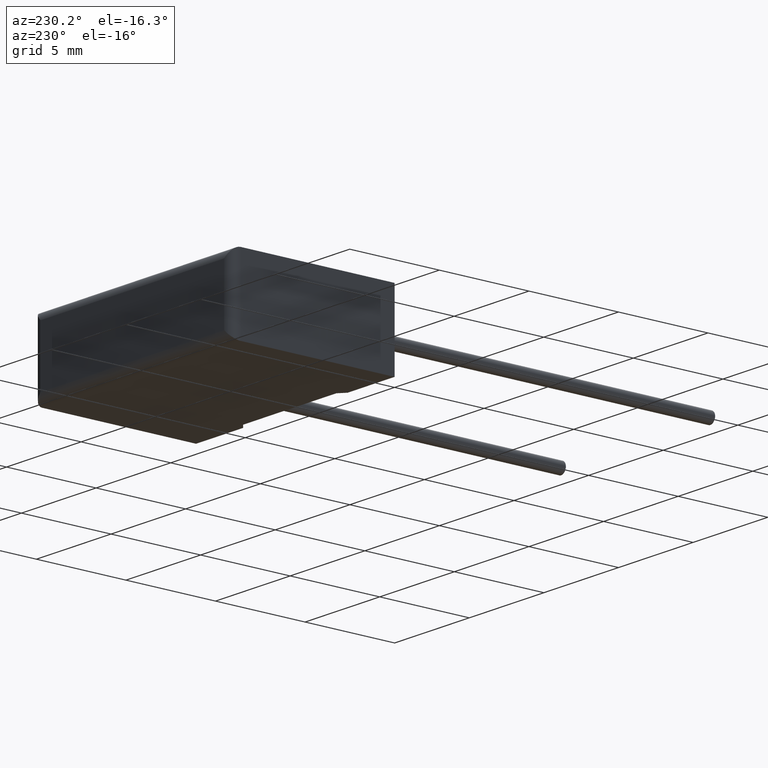
[diagram: clean part render]
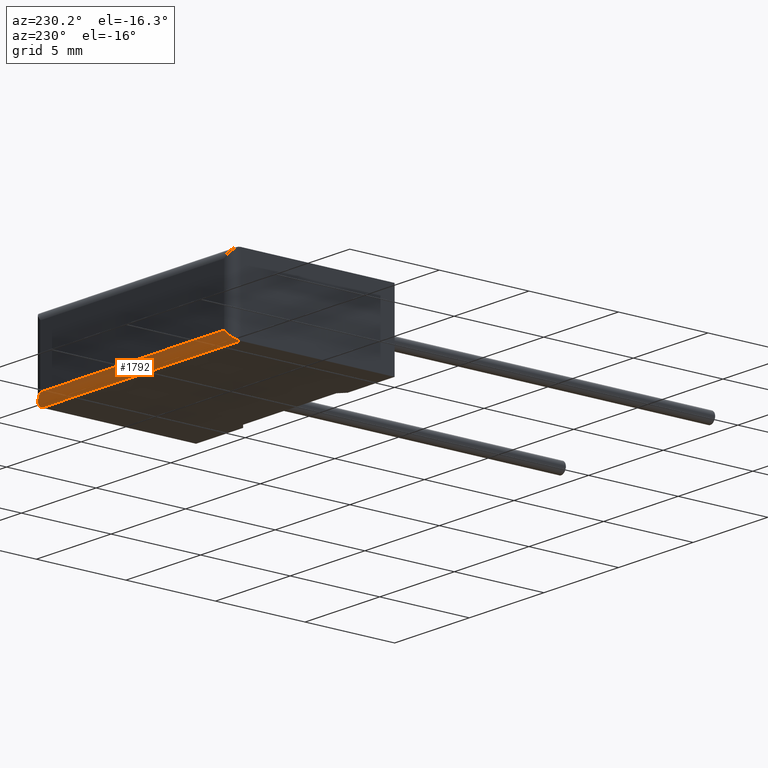
[diagram: same view with one face highlighted and labeled with its STEP entity id]
A machine part, auxiliary view. The second image highlights one B-rep face of the part: STEP entity #1792.
In plain terms, the highlighted cylindrical surface (edge-blend (fillet) strip) has radius 0.5 mm, axis along (1, 0, 0).
Its self-contained STEP definition (entity closure, byte-faithful):
#118 = ORIENTED_EDGE ( 'NONE', *, *, #1376, .F. ) ;
#202 = ORIENTED_EDGE ( 'NONE', *, *, #484, .F. ) ;
#211 = VECTOR ( 'NONE', #1558, 1000.000000000000000 ) ;
#477 = ORIENTED_EDGE ( 'NONE', *, *, #2790, .T. ) ;
#484 = EDGE_CURVE ( 'NONE', #517, #2030, #765, .T. ) ;
#517 = VERTEX_POINT ( 'NONE', #1700 ) ;
#636 = CARTESIAN_POINT ( 'NONE',  ( 0.000000000000000000, 8.599999999999999645, 0.5000000000000000000 ) ) ;
#765 = LINE ( 'NONE', #1011, #1676 ) ;
#786 = CARTESIAN_POINT ( 'NONE',  ( 13.30000000000000071, 8.599999999999999645, 0.000000000000000000 ) ) ;
#859 = DIRECTION ( 'NONE',  ( 0.000000000000000000, 0.000000000000000000, -1.000000000000000000 ) ) ;
#867 = LINE ( 'NONE', #1789, #211 ) ;
#869 = CARTESIAN_POINT ( 'NONE',  ( 0.000000000000000000, 8.599999999999999645, 0.000000000000000000 ) ) ;
#1011 = CARTESIAN_POINT ( 'NONE',  ( 0.000000000000000000, 9.099999999999999645, 0.5000000000000000000 ) ) ;
#1075 = CARTESIAN_POINT ( 'NONE',  ( 1.442892915397364602E-16, 8.892893218813449963, 1.442892915397364602E-16 ) ) ;
#1109 = CYLINDRICAL_SURFACE ( 'NONE', #2818, 0.5000000000000000000 ) ;
#1225 = CARTESIAN_POINT ( 'NONE',  ( 13.30000000000000071, 8.892893218813451739, 1.084202172485504434E-16 ) ) ;
#1271 = EDGE_LOOP ( 'NONE', ( #477, #118, #1553, #202 ) ) ;
#1376 = EDGE_CURVE ( 'NONE', #1963, #2590, #867, .T. ) ;
#1404 =( BOUNDED_CURVE ( )  B_SPLINE_CURVE ( 3, ( #2872, #2644, #1225, #786 ),
 .UNSPECIFIED., .F., .T. ) 
 B_SPLINE_CURVE_WITH_KNOTS ( ( 4, 4 ),
 ( 4.712388980384689674, 6.283185307179586232 ),
 .UNSPECIFIED. ) 
 CURVE ( )  GEOMETRIC_REPRESENTATION_ITEM ( )  RATIONAL_B_SPLINE_CURVE ( ( 1.000000000000000000, 0.8047378541243649375, 0.8047378541243649375, 1.000000000000000000 ) ) 
 REPRESENTATION_ITEM ( '' )  );
#1470 = CARTESIAN_POINT ( 'NONE',  ( 0.000000000000000000, 8.599999999999999645, 0.000000000000000000 ) ) ;
#1553 = ORIENTED_EDGE ( 'NONE', *, *, #2977, .F. ) ;
#1558 = DIRECTION ( 'NONE',  ( 1.000000000000000000, -0.000000000000000000, -0.000000000000000000 ) ) ;
#1676 = VECTOR ( 'NONE', #2661, 1000.000000000000000 ) ;
#1700 = CARTESIAN_POINT ( 'NONE',  ( 12.80000000000000071, 9.099999999999999645, 0.5000000000000000000 ) ) ;
#1789 = CARTESIAN_POINT ( 'NONE',  ( 13.30000000000000071, 8.599999999999999645, 0.000000000000000000 ) ) ;
#1792 = ADVANCED_FACE ( 'NONE', ( #2380 ), #1109, .T. ) ;
#1963 = VERTEX_POINT ( 'NONE', #1470 ) ;
#2030 = VERTEX_POINT ( 'NONE', #2885 ) ;
#2264 = CARTESIAN_POINT ( 'NONE',  ( 13.30000000000000071, 8.599999999999999645, 0.000000000000000000 ) ) ;
#2284 = DIRECTION ( 'NONE',  ( 1.000000000000000000, 0.000000000000000000, 0.000000000000000000 ) ) ;
#2380 = FACE_OUTER_BOUND ( 'NONE', #1271, .T. ) ;
#2590 = VERTEX_POINT ( 'NONE', #2264 ) ;
#2644 = CARTESIAN_POINT ( 'NONE',  ( 13.09289321881345280, 9.099999999999999645, 0.2071067811865477115 ) ) ;
#2661 = DIRECTION ( 'NONE',  ( -1.000000000000000000, 0.000000000000000000, 0.000000000000000000 ) ) ;
#2687 =( BOUNDED_CURVE ( )  B_SPLINE_CURVE ( 3, ( #2994, #2981, #1075, #869 ),
 .UNSPECIFIED., .F., .T. ) 
 B_SPLINE_CURVE_WITH_KNOTS ( ( 4, 4 ),
 ( 1.570796326794896780, 3.141592653589793116 ),
 .UNSPECIFIED. ) 
 CURVE ( )  GEOMETRIC_REPRESENTATION_ITEM ( )  RATIONAL_B_SPLINE_CURVE ( ( 1.000000000000000000, 0.8047378541243650485, 0.8047378541243650485, 1.000000000000000000 ) ) 
 REPRESENTATION_ITEM ( '' )  );
#2790 = EDGE_CURVE ( 'NONE', #517, #2590, #1404, .T. ) ;
#2818 = AXIS2_PLACEMENT_3D ( 'NONE', #636, #2284, #859 ) ;
#2872 = CARTESIAN_POINT ( 'NONE',  ( 12.80000000000000071, 9.099999999999999645, 0.5000000000000000000 ) ) ;
#2885 = CARTESIAN_POINT ( 'NONE',  ( 0.5000000000000000000, 9.099999999999999645, 0.5000000000000000000 ) ) ;
#2977 = EDGE_CURVE ( 'NONE', #2030, #1963, #2687, .T. ) ;
#2981 = CARTESIAN_POINT ( 'NONE',  ( 0.2071067811865475172, 9.099999999999999645, 0.2071067811865475172 ) ) ;
#2994 = CARTESIAN_POINT ( 'NONE',  ( 0.5000000000000000000, 9.099999999999999645, 0.5000000000000000000 ) ) ;